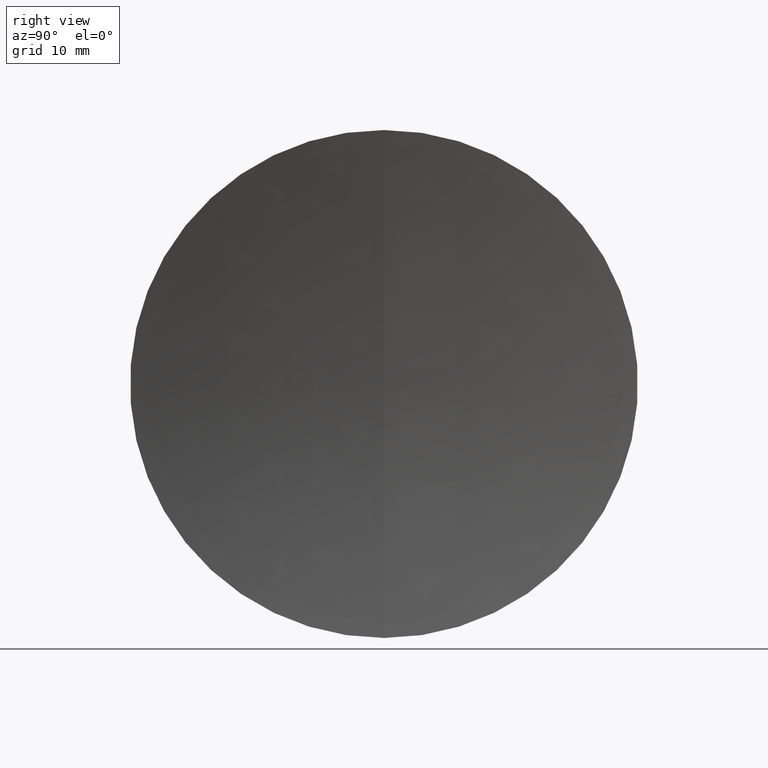
[diagram: clean part render]
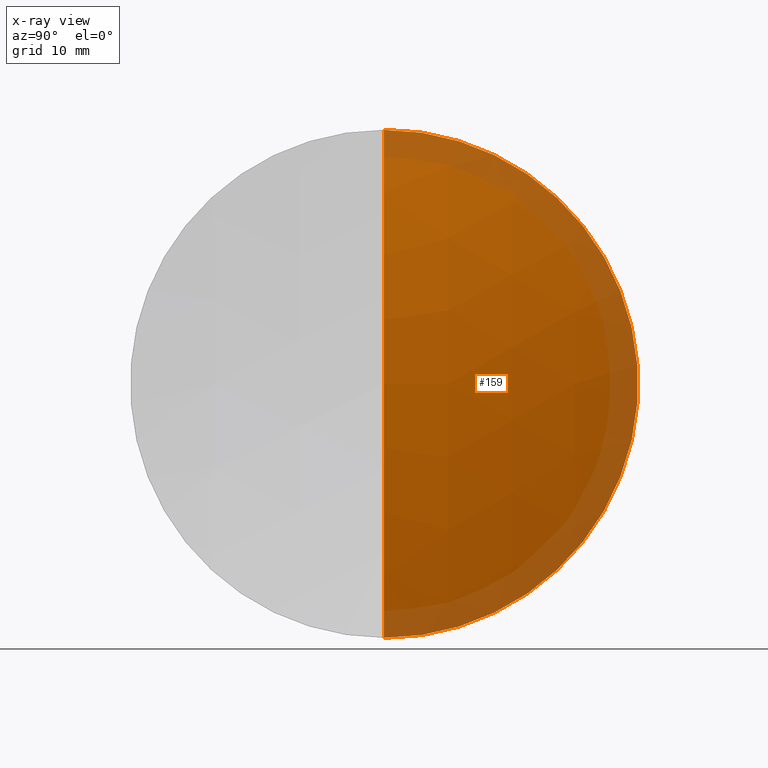
[diagram: x-ray — body ghosted, one internal face saturated and labeled with its STEP entity id]
A machine part, right view, then the same camera in x-ray: the body is ghosted and one INTERNAL B-rep face — a face not visible from any outside direction — is saturated and labeled: STEP entity #159.
In plain terms, the highlighted spherical surface has radius 95.94 mm.
Its self-contained STEP definition (entity closure, byte-faithful):
#5 = VERTEX_POINT ( 'NONE', #269 ) ;
#7 = CARTESIAN_POINT ( 'NONE',  ( 91.31375641056060000, 0.0000000000000000000, 2.802398936537134900E-014 ) ) ;
#9 = CARTESIAN_POINT ( 'NONE',  ( 183.8303689728458900, 0.0000000000000000000, 25.40000000000002700 ) ) ;
#32 = DIRECTION ( 'NONE',  ( -1.000000000000000000, -0.0000000000000000000, -0.0000000000000000000 ) ) ;
#34 = EDGE_LOOP ( 'NONE', ( #326, #46, #231 ) ) ;
#35 = CARTESIAN_POINT ( 'NONE',  ( 183.8303689728458900, 3.110602869834280400E-015, -25.40000000000002700 ) ) ;
#46 = ORIENTED_EDGE ( 'NONE', *, *, #179, .T. ) ;
#70 = AXIS2_PLACEMENT_3D ( 'NONE', #7, #173, #328 ) ;
#85 = AXIS2_PLACEMENT_3D ( 'NONE', #115, #284, #86 ) ;
#86 = DIRECTION ( 'NONE',  ( 0.0000000000000000000, -1.224646799147353200E-016, 1.000000000000000000 ) ) ;
#90 = CARTESIAN_POINT ( 'NONE',  ( 91.31375641056060000, 0.0000000000000000000, 2.802398936537134900E-014 ) ) ;
#104 = AXIS2_PLACEMENT_3D ( 'NONE', #90, #208, #307 ) ;
#112 = SPHERICAL_SURFACE ( 'NONE', #104, 95.94000000000002600 ) ;
#115 = CARTESIAN_POINT ( 'NONE',  ( 91.31375641056060000, 0.0000000000000000000, 2.802398936537134900E-014 ) ) ;
#118 = VERTEX_POINT ( 'NONE', #35 ) ;
#120 = EDGE_CURVE ( 'NONE', #130, #118, #273, .T. ) ;
#121 = CIRCLE ( 'NONE', #85, 95.94000000000002600 ) ;
#130 = VERTEX_POINT ( 'NONE', #9 ) ;
#158 = EDGE_CURVE ( 'NONE', #5, #130, #189, .T. ) ;
#159 = ADVANCED_FACE ( 'NONE', ( #266 ), #112, .T. ) ;
#173 = DIRECTION ( 'NONE',  ( 0.0000000000000000000, -1.000000000000000000, 0.0000000000000000000 ) ) ;
#179 = EDGE_CURVE ( 'NONE', #5, #118, #121, .T. ) ;
#189 = CIRCLE ( 'NONE', #70, 95.94000000000002600 ) ;
#208 = DIRECTION ( 'NONE',  ( 0.0000000000000000000, 1.000000000000000000, 0.0000000000000000000 ) ) ;
#210 = DIRECTION ( 'NONE',  ( 0.0000000000000000000, 0.0000000000000000000, 1.000000000000000000 ) ) ;
#231 = ORIENTED_EDGE ( 'NONE', *, *, #120, .F. ) ;
#234 = CARTESIAN_POINT ( 'NONE',  ( 183.8303689728458900, 0.0000000000000000000, 0.0000000000000000000 ) ) ;
#266 = FACE_OUTER_BOUND ( 'NONE', #34, .T. ) ;
#269 = CARTESIAN_POINT ( 'NONE',  ( 187.2537564105606400, 0.0000000000000000000, 3.389862006088120700E-014 ) ) ;
#273 = CIRCLE ( 'NONE', #296, 25.40000000000002700 ) ;
#284 = DIRECTION ( 'NONE',  ( -0.0000000000000000000, 1.000000000000000000, 1.224646799147353200E-016 ) ) ;
#296 = AXIS2_PLACEMENT_3D ( 'NONE', #234, #32, #210 ) ;
#307 = DIRECTION ( 'NONE',  ( 0.0000000000000000000, 0.0000000000000000000, 1.000000000000000000 ) ) ;
#326 = ORIENTED_EDGE ( 'NONE', *, *, #158, .F. ) ;
#328 = DIRECTION ( 'NONE',  ( 0.0000000000000000000, 0.0000000000000000000, -1.000000000000000000 ) ) ;